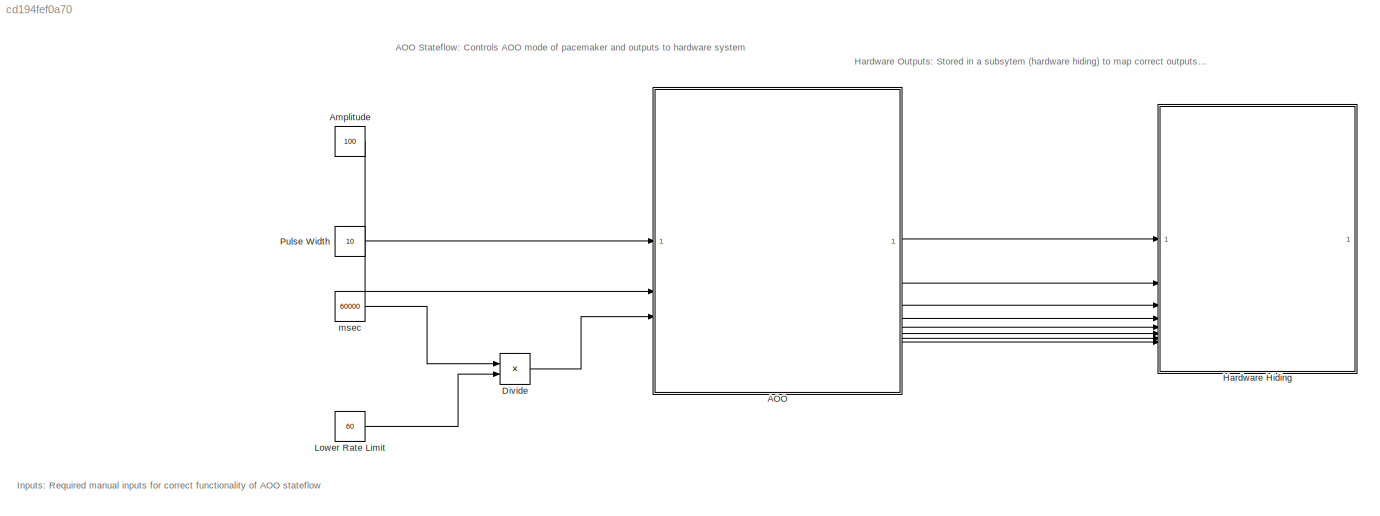
MODEL slx_cd194fef0a70
KIND model
CONFIG AbsTol = auto
CONFIG EnableMultiTasking = on
CONFIG FixedStep = 1e-3
CONFIG MaxStep = auto
CONFIG MinStep = auto
CONFIG RelTol = 1e-3
CONFIG SampleTimeConstraint = Unconstrained
CONFIG SolverName = FixedStepAuto
CONFIG StartTime = 0.0
CONFIG StopTime = 10.0
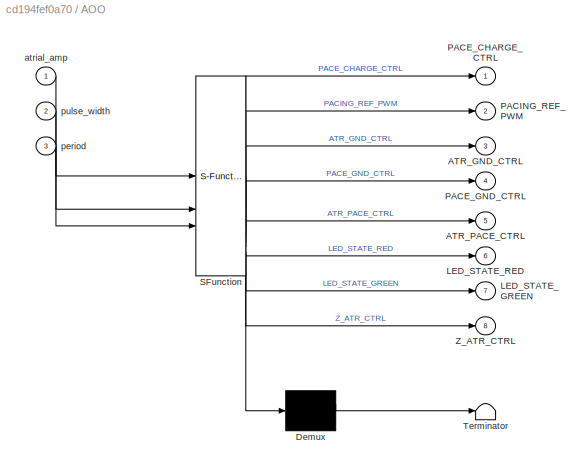
BLOCK [SubSystem] AOO
  ErrorFcn = Stateflow.Translate.translate
  PermitHierarchicalResolution = ExplicitOnly
  PortSchema = {"entries":[{"content":{"sides":[{"content":{"connectorIds":["In1","In2","In3"]},"type":"ConnectorPlacement.EquallySpacedRectSide","uuid":"95ae3ac6-e5ac-4d1d-8671-90628795223e"},{"content":{"connectorIds":["Out1","Out2","Out3","Out4","Out5","Out8","Out6","Out7"],"side":"RIGHT"},"type":"ConnectorPlacement.EquallySpacedRectSide","uuid":"b0ec74bf-e631-4588-a0db-5024556e9f33"},{"content":{"side":"TOP"...<+283ch>
  SFBlockType = Chart
  TreatAsAtomicUnit = on
BLOCK [Demux] AOO/ Demux 
  Outputs = 1
BLOCK [S-Function] AOO/ SFunction 
  EnableBusSupport = on
  FunctionName = sf_sfun
  PortCounts = [3 9]
  SFcnIsStateOwnerBlock = off
  SFunctionDeploymentMode = off
  Tag = Stateflow S-Function 3
BLOCK [Terminator] AOO/ Terminator 
BLOCK [Outport] AOO/ATR_GND_CTRL
  Port = 3
BLOCK [Outport] AOO/ATR_PACE_CTRL
  Port = 5
BLOCK [Outport] AOO/LED_STATE_GREEN
  Port = 7
BLOCK [Outport] AOO/LED_STATE_RED
  Port = 6
BLOCK [Outport] AOO/PACE_CHARGE_CTRL
BLOCK [Outport] AOO/PACE_GND_CTRL
  Port = 4
BLOCK [Outport] AOO/PACING_REF_PWM
  Port = 2
BLOCK [Outport] AOO/Z_ATR_CTRL
  Port = 8
BLOCK [Inport] AOO/atrial_amp
BLOCK [Inport] AOO/period
  Port = 3
BLOCK [Inport] AOO/pulse_width
  Port = 2
BLOCK [Constant] Amplitude
  Value = 100
BLOCK [Product] Divide
  Inputs = */
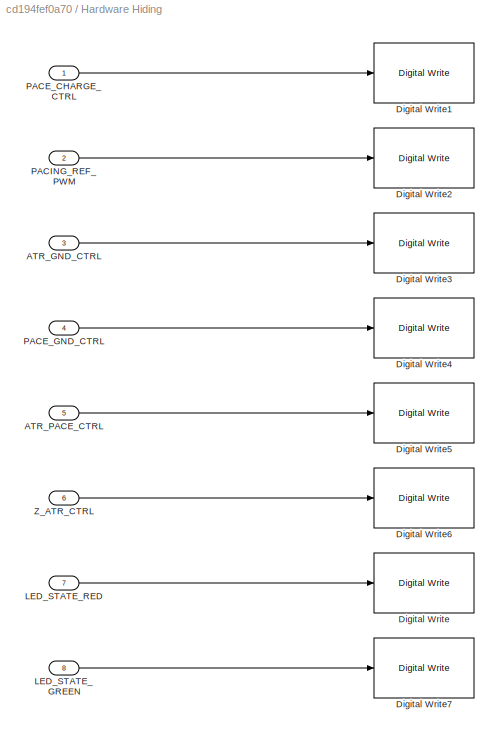
BLOCK [SubSystem] Hardware Hiding
BLOCK [Inport] Hardware Hiding/ATR_GND_CTRL
  Port = 3
BLOCK [Inport] Hardware Hiding/ATR_PACE_CTRL
  Port = 5
BLOCK [Reference] Hardware Hiding/Digital Write  REF=frdmk64flib/Digital Write
  SourceBlock = frdmk64flib/Digital Write
  SourceType = freedomk64f.DigitalWrite
BLOCK [Reference] Hardware Hiding/Digital Write1  REF=frdmk64flib/Digital Write
  SourceBlock = frdmk64flib/Digital Write
  SourceType = freedomk64f.DigitalWrite
BLOCK [Reference] Hardware Hiding/Digital Write2  REF=frdmk64flib/Digital Write
  SourceBlock = frdmk64flib/Digital Write
  SourceType = freedomk64f.DigitalWrite
BLOCK [Reference] Hardware Hiding/Digital Write3  REF=frdmk64flib/Digital Write
  SourceBlock = frdmk64flib/Digital Write
  SourceType = freedomk64f.DigitalWrite
BLOCK [Reference] Hardware Hiding/Digital Write4  REF=frdmk64flib/Digital Write
  SourceBlock = frdmk64flib/Digital Write
  SourceType = freedomk64f.DigitalWrite
BLOCK [Reference] Hardware Hiding/Digital Write5  REF=frdmk64flib/Digital Write
  SourceBlock = frdmk64flib/Digital Write
  SourceType = freedomk64f.DigitalWrite
BLOCK [Reference] Hardware Hiding/Digital Write6  REF=frdmk64flib/Digital Write
  SourceBlock = frdmk64flib/Digital Write
  SourceType = freedomk64f.DigitalWrite
BLOCK [Reference] Hardware Hiding/Digital Write7  REF=frdmk64flib/Digital Write
  SourceBlock = frdmk64flib/Digital Write
  SourceType = freedomk64f.DigitalWrite
BLOCK [Inport] Hardware Hiding/LED_STATE_GREEN
  Port = 8
BLOCK [Inport] Hardware Hiding/LED_STATE_RED
  Port = 7
BLOCK [Inport] Hardware Hiding/PACE_CHARGE_CTRL
BLOCK [Inport] Hardware Hiding/PACE_GND_CTRL
  Port = 4
BLOCK [Inport] Hardware Hiding/PACING_REF_PWM
  Port = 2
BLOCK [Inport] Hardware Hiding/Z_ATR_CTRL
  Port = 6
BLOCK [Constant] Lower Rate Limit
  Value = 60
BLOCK [Constant] Pulse Width
  Value = 10
BLOCK [Constant] msec
  Value = 60000
ANNOTATION (root): Inputs: Required manual inputs for correct functionality of AOO stateflow
ANNOTATION (root): AOO Stateflow: Controls AOO mode of pacemaker and outputs to hardware system
ANNOTATION (root): Hardware Outputs: Stored in a subsytem (hardware hiding) to map correct outputs to associated hardware pins.
LINE AOO:1 -> Hardware Hiding:1
LINE AOO:2 -> Hardware Hiding:2
LINE AOO:3 -> Hardware Hiding:3
LINE AOO:4 -> Hardware Hiding:4
LINE AOO:5 -> Hardware Hiding:5
LINE AOO:6 -> Hardware Hiding:7
LINE AOO:7 -> Hardware Hiding:8
LINE AOO:8 -> Hardware Hiding:6
LINE Amplitude:1 -> AOO:1
LINE Divide:1 -> AOO:3
LINE Hardware Hiding/ATR_GND_CTRL:1 -> Hardware Hiding/Digital Write3:1
LINE Hardware Hiding/ATR_PACE_CTRL:1 -> Hardware Hiding/Digital Write5:1
LINE Hardware Hiding/LED_STATE_GREEN:1 -> Hardware Hiding/Digital Write7:1
LINE Hardware Hiding/LED_STATE_RED:1 -> Hardware Hiding/Digital Write:1
LINE Hardware Hiding/PACE_CHARGE_CTRL:1 -> Hardware Hiding/Digital Write1:1
LINE Hardware Hiding/PACE_GND_CTRL:1 -> Hardware Hiding/Digital Write4:1
LINE Hardware Hiding/PACING_REF_PWM:1 -> Hardware Hiding/Digital Write2:1
LINE Hardware Hiding/Z_ATR_CTRL:1 -> Hardware Hiding/Digital Write6:1
LINE Lower Rate Limit:1 -> Divide:2
LINE Pulse Width:1 -> AOO:2
LINE msec:1 -> Divide:1
CHART AOO states=4 transitions=3
  STATE_LABEL '<!DOCTYPE HTML PUBLIC "-//W3C//DTD HTML 4.0//EN" "http://www.w3.org/TR/REC-html40/strict.dtd">\n<html><head><meta name="qrichtext" content="1" /><style type="text/css">\np, li { white-space: pre-wrap; }\n</style></head><body align="left" style=" font-family:\'Helvetica\'; font-size:12px; font-weight:400; font-style:normal;">\n<p align="left" style=" margin-top:0px; margin-bottom:0px; margin-left:0px; ma...<+503ch>'
  STATE_LABEL '<!DOCTYPE HTML PUBLIC "-//W3C//DTD HTML 4.0//EN" "http://www.w3.org/TR/REC-html40/strict.dtd">\n<html><head><meta name="qrichtext" content="1" /><style type="text/css">\np, li { white-space: pre-wrap; }\n</style></head><body align="left" style=" font-family:\'MS Shell Dlg 2\'; font-size:11px; font-weight:600; font-style:normal;">\n<p align="left" style=" margin-top:0px; margin-bottom:0px; margin-left:0p...<+428ch>'
  STATE_LABEL 'Pacing\n\nentry:\nPACING_REF_PWM = atrial_amp;\nPACE_CHARGE_CTRL=0;\nATR_PACE_CTRL= 1;\nATR_GND_CTRL= 0;\nPACE_GND_CTRL=1;\nZ_ATR_CTRL=0;\nLED_STATE_RED=false;\nLED_STATE_GREEN=true;\n'
  STATE_LABEL 'Charging\n\nentry:\nPACING_REF_PWM = atrial_amp;\nPACE_CHARGE_CTRL=1;\nATR_PACE_CTRL= 0;\nATR_GND_CTRL= 1;\nPACE_GND_CTRL=0;\nZ_ATR_CTRL=0;\nLED_STATE_RED=true;\nLED_STATE_GREEN=false;'
CHART  states=0 transitions=0
